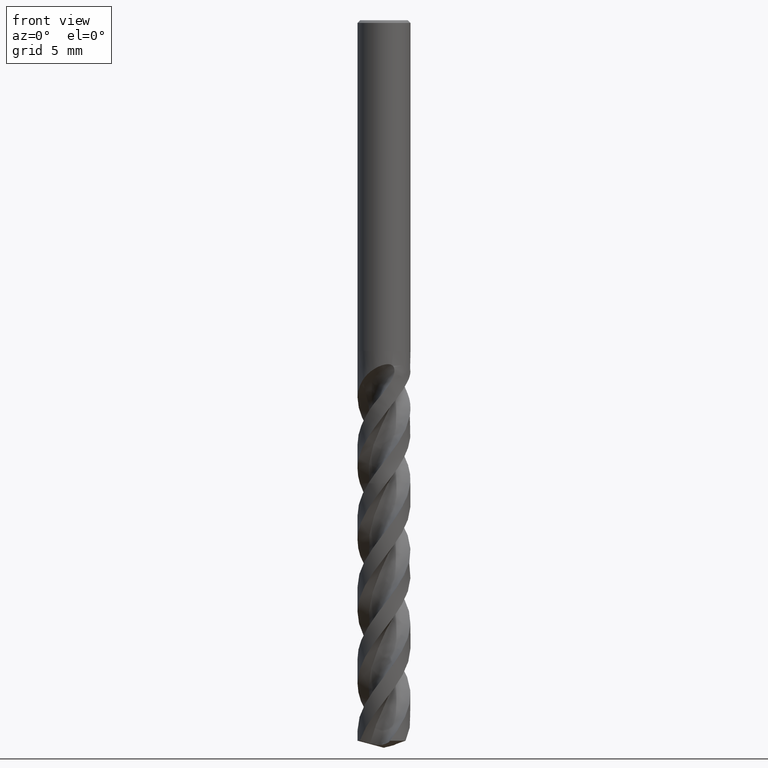
[diagram: clean part render]
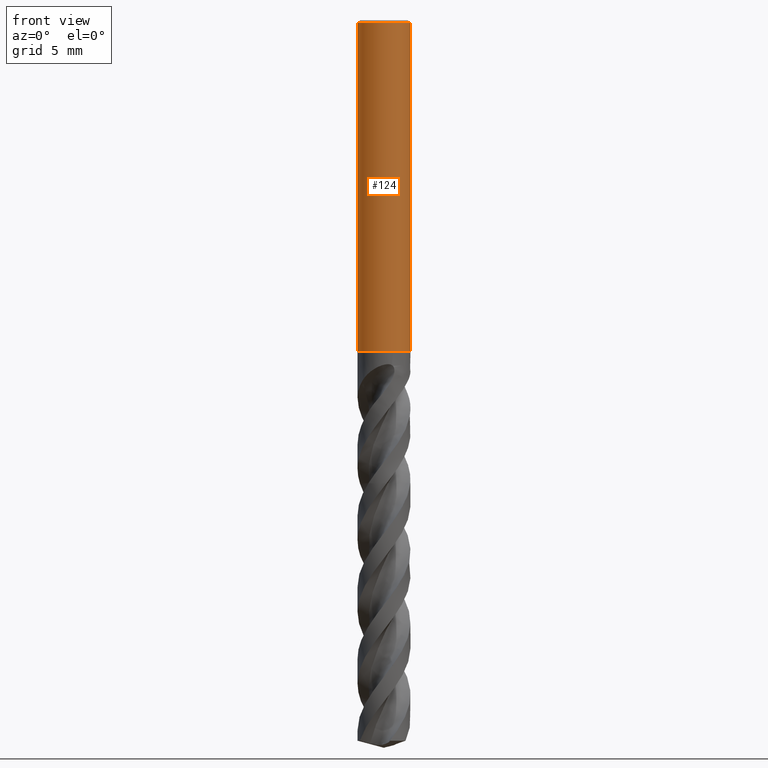
[diagram: same view with one face highlighted and labeled with its STEP entity id]
A machine part, front view. The second image highlights one B-rep face of the part: STEP entity #124.
In plain terms, the highlighted face is a freeform B-spline surface patch.
Its self-contained STEP definition (entity closure, byte-faithful):
#73 = VERTEX_POINT('', #74);
#74 = CARTESIAN_POINT('', (-2., 1.34711147906209E-16, -0.199999999999999));
#90 = EDGE_CURVE('', #73, #73, #91, .T.);
#91 = CIRCLE('', #92, 2.);
#92 = AXIS2_PLACEMENT_3D('', #93, #94, #95);
#93 = CARTESIAN_POINT('', (7.49879891330934E-34, 1.22464679914736E-17, -0.199999999999999));
#94 = DIRECTION('', (3.74939945665464E-33, 6.12323399573677E-17, -1.));
#95 = DIRECTION('', (-1., 6.12323399573677E-17, 0.));
#124 = ADVANCED_FACE('', (#125), #144, .T.);
#125 = FACE_OUTER_BOUND('', #126, .T.);
#126 = EDGE_LOOP('', (#127, #135, #142, #143));
#127 = ORIENTED_EDGE('', *, *, #128, .F.);
#128 = EDGE_CURVE('', #129, #73, #131, .T.);
#129 = VERTEX_POINT('', #130);
#130 = CARTESIAN_POINT('', (-2., 1.65327317884893E-15, -25.));
#131 = LINE('', #132, #133);
#132 = CARTESIAN_POINT('', (-2., 1.65327317884893E-15, -25.));
#133 = VECTOR('', #134, 24.8);
#134 = DIRECTION('', (0., -1.51856203094272E-15, 24.8));
#135 = ORIENTED_EDGE('', *, *, #136, .F.);
#136 = EDGE_CURVE('', #129, #129, #137, .T.);
#137 = CIRCLE('', #138, 2.);
#138 = AXIS2_PLACEMENT_3D('', #139, #140, #141);
#139 = CARTESIAN_POINT('', (9.37349864163661E-32, 1.53080849893419E-15, -25.));
#140 = DIRECTION('', (3.74939945665464E-33, 6.12323399573677E-17, -1.));
#141 = DIRECTION('', (-1., 6.12323399573677E-17, 0.));
#142 = ORIENTED_EDGE('', *, *, #128, .T.);
#143 = ORIENTED_EDGE('', *, *, #90, .T.);
#144 = (
   BOUNDED_SURFACE ()
   B_SPLINE_SURFACE (1, 2, ((#145, #146, #147, #148, #149, #150, #151, #152, #153), (#154, #155, #156, #157, #158, #159, #160, #161, #162)), .UNSPECIFIED., .F., .T., .U.)
   B_SPLINE_SURFACE_WITH_KNOTS ((2, 2), (3, 2, 2, 2, 3), (-0.087719298245614, 1.), (0., 0.25, 0.5, 0.75, 1.), .UNSPECIFIED.)
   GEOMETRIC_REPRESENTATION_ITEM ()
   RATIONAL_B_SPLINE_SURFACE (((1., 0.707106781186548, 1., 0.707106781186548, 1., 0.707106781186548, 1., 0.707106781186548, 1.), (1., 0.707106781186548, 1., 0.707106781186548, 1., 0.707106781186548, 1., 0.707106781186548, 1.)))
   REPRESENTATION_ITEM ('')
   SURFACE ()
);
#145 = CARTESIAN_POINT('', (-2., 1.65327317884893E-15, -25.));
#146 = CARTESIAN_POINT('', (-2., 2., -25.));
#147 = CARTESIAN_POINT('', (-4.16333634234434E-16, 2., -25.));
#148 = CARTESIAN_POINT('', (2., 2., -25.));
#149 = CARTESIAN_POINT('', (2., 2.65247390101157E-15, -25.));
#150 = CARTESIAN_POINT('', (2., -2., -25.));
#151 = CARTESIAN_POINT('', (8.27796447757678E-16, -2., -25.));
#152 = CARTESIAN_POINT('', (-2., -2., -25.));
#153 = CARTESIAN_POINT('', (-2., 1.65327317884893E-15, -25.));
#154 = CARTESIAN_POINT('', (-2., 1.34711147906209E-16, -0.199999999999999));
#155 = CARTESIAN_POINT('', (-2., 2., -0.200000000000003));
#156 = CARTESIAN_POINT('', (-4.16333634234434E-16, 2., -0.199999999999999));
#157 = CARTESIAN_POINT('', (2., 2., -0.200000000000003));
#158 = CARTESIAN_POINT('', (2., 1.13391187006885E-15, -0.199999999999999));
#159 = CARTESIAN_POINT('', (2., -2., -0.200000000000003));
#160 = CARTESIAN_POINT('', (8.27796447757678E-16, -2., -0.199999999999999));
#161 = CARTESIAN_POINT('', (-2., -2., -0.200000000000003));
#162 = CARTESIAN_POINT('', (-2., 1.34711147906209E-16, -0.199999999999999));